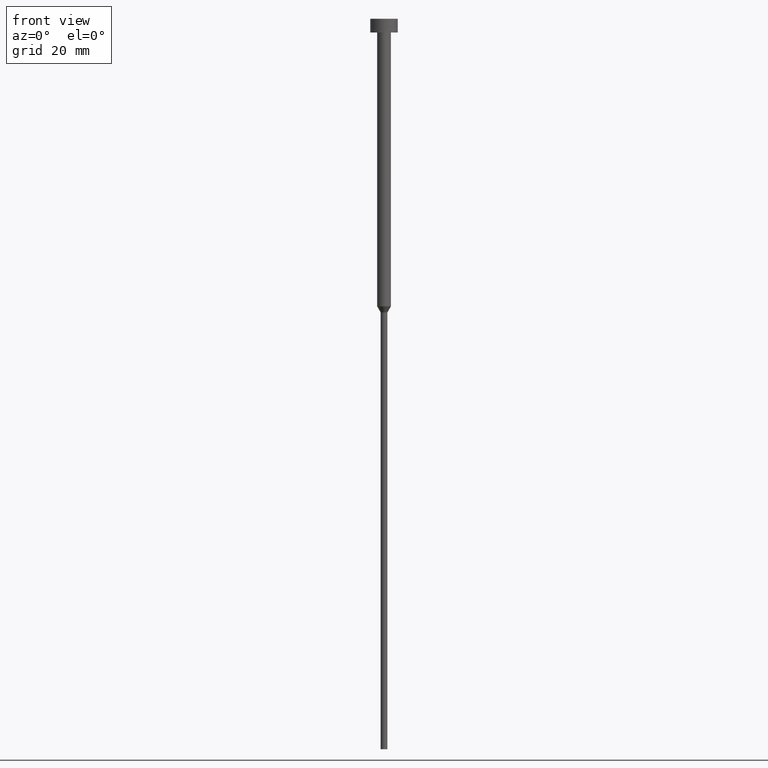
[diagram: clean part render]
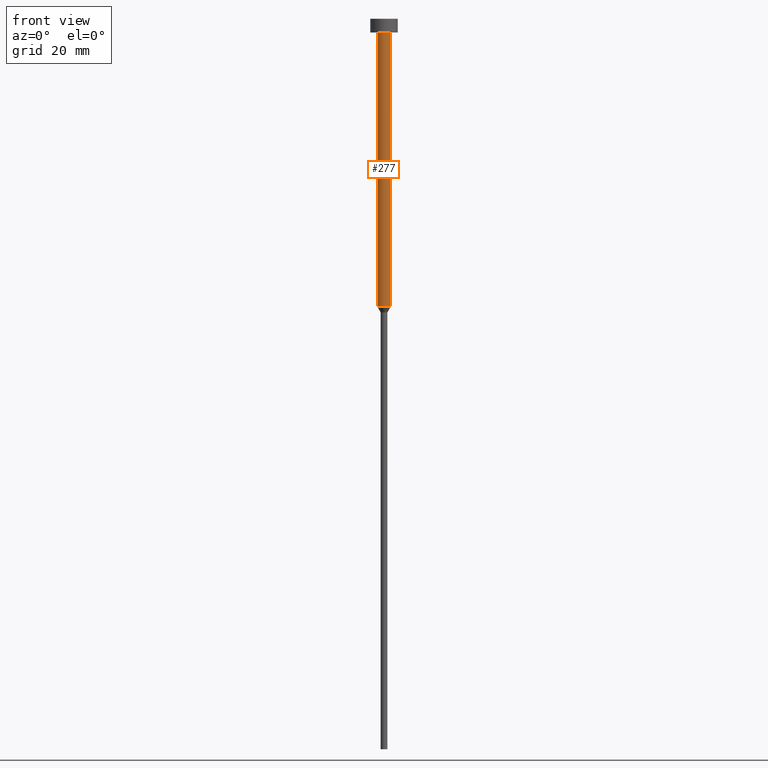
[diagram: same view with one face highlighted and labeled with its STEP entity id]
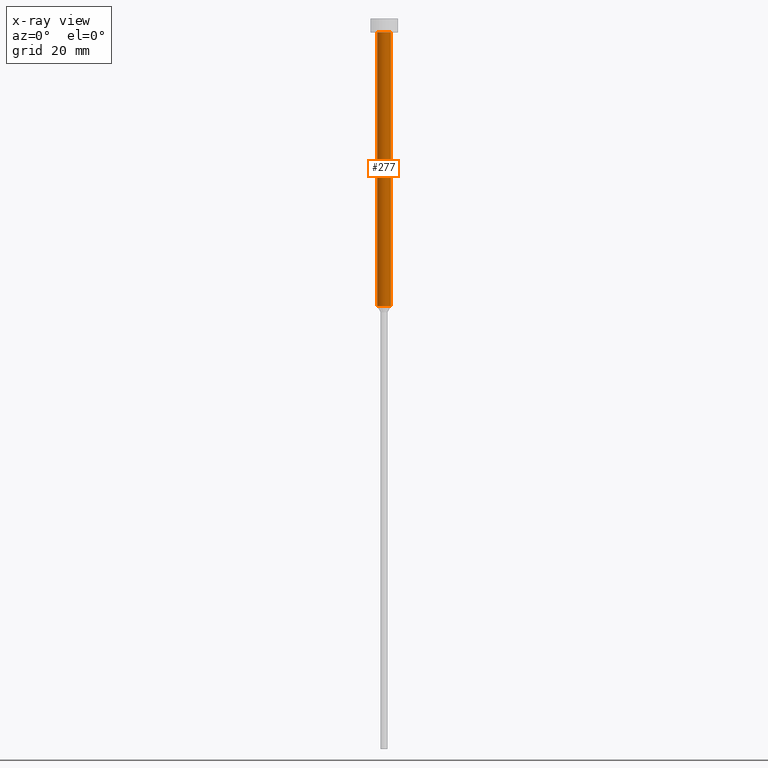
[diagram: x-ray of the same camera — body ghosted, the highlighted face saturated]
A machine part, front view. The second image highlights one B-rep face of the part: STEP entity #277.
The next image is the same camera in x-ray: the body ghosted, the highlighted face saturated — about 0% of this face is hidden behind the body in this view.
In plain terms, the highlighted cylindrical surface (edge-blend (fillet) strip) has radius 1.5 mm, axis along (-0, -0, 1).
Its self-contained STEP definition (entity closure, byte-faithful):
#24 = CYLINDRICAL_SURFACE ( 'NONE', #111, 1.500000000000000000 ) ;
#30 = CARTESIAN_POINT ( 'NONE',  ( 0.000000000000000000, 0.000000000000000000, -3.000000000000000888 ) ) ;
#36 = CARTESIAN_POINT ( 'NONE',  ( 1.500000000000000000, 0.000000000000000000, -3.000000000000000888 ) ) ;
#49 = DIRECTION ( 'NONE',  ( 1.000000000000000000, 0.000000000000000000, 0.000000000000000000 ) ) ;
#51 = DIRECTION ( 'NONE',  ( 1.000000000000000000, 0.000000000000000000, 0.000000000000000000 ) ) ;
#52 = CARTESIAN_POINT ( 'NONE',  ( -1.500000000000000000, 1.836970198721029934E-16, -3.000000000000000888 ) ) ;
#62 = DIRECTION ( 'NONE',  ( -0.000000000000000000, -0.000000000000000000, 1.000000000000000000 ) ) ;
#85 = ORIENTED_EDGE ( 'NONE', *, *, #93, .F. ) ;
#88 = CIRCLE ( 'NONE', #208, 1.500000000000000000 ) ;
#93 = EDGE_CURVE ( 'NONE', #334, #344, #144, .T. ) ;
#94 = VERTEX_POINT ( 'NONE', #201 ) ;
#104 = DIRECTION ( 'NONE',  ( -0.000000000000000000, -0.000000000000000000, 1.000000000000000000 ) ) ;
#105 = LINE ( 'NONE', #346, #233 ) ;
#111 = AXIS2_PLACEMENT_3D ( 'NONE', #197, #299, #51 ) ;
#113 = VERTEX_POINT ( 'NONE', #36 ) ;
#144 = LINE ( 'NONE', #237, #228 ) ;
#157 = ORIENTED_EDGE ( 'NONE', *, *, #178, .T. ) ;
#165 = EDGE_CURVE ( 'NONE', #344, #113, #88, .T. ) ;
#178 = EDGE_CURVE ( 'NONE', #334, #94, #247, .T. ) ;
#197 = CARTESIAN_POINT ( 'NONE',  ( 0.000000000000000000, 0.000000000000000000, 0.000000000000000000 ) ) ;
#201 = CARTESIAN_POINT ( 'NONE',  ( 1.500000000000000000, 0.000000000000000000, -63.00000000000000000 ) ) ;
#208 = AXIS2_PLACEMENT_3D ( 'NONE', #30, #232, #308 ) ;
#216 = AXIS2_PLACEMENT_3D ( 'NONE', #221, #296, #49 ) ;
#220 = EDGE_CURVE ( 'NONE', #94, #113, #105, .T. ) ;
#221 = CARTESIAN_POINT ( 'NONE',  ( 0.000000000000000000, 0.000000000000000000, -63.00000000000000000 ) ) ;
#223 = CARTESIAN_POINT ( 'NONE',  ( -1.500000000000000000, 1.836970198721029934E-16, -63.00000000000000000 ) ) ;
#228 = VECTOR ( 'NONE', #62, 1000.000000000000000 ) ;
#230 = EDGE_LOOP ( 'NONE', ( #85, #157, #318, #243 ) ) ;
#232 = DIRECTION ( 'NONE',  ( -0.000000000000000000, -0.000000000000000000, 1.000000000000000000 ) ) ;
#233 = VECTOR ( 'NONE', #104, 1000.000000000000000 ) ;
#237 = CARTESIAN_POINT ( 'NONE',  ( -1.500000000000000000, 1.836970198721029934E-16, 0.000000000000000000 ) ) ;
#243 = ORIENTED_EDGE ( 'NONE', *, *, #165, .F. ) ;
#247 = CIRCLE ( 'NONE', #216, 1.500000000000000000 ) ;
#277 = ADVANCED_FACE ( 'NONE', ( #324 ), #24, .T. ) ;
#296 = DIRECTION ( 'NONE',  ( -0.000000000000000000, -0.000000000000000000, 1.000000000000000000 ) ) ;
#299 = DIRECTION ( 'NONE',  ( -0.000000000000000000, -0.000000000000000000, 1.000000000000000000 ) ) ;
#308 = DIRECTION ( 'NONE',  ( 1.000000000000000000, 0.000000000000000000, 0.000000000000000000 ) ) ;
#318 = ORIENTED_EDGE ( 'NONE', *, *, #220, .T. ) ;
#324 = FACE_OUTER_BOUND ( 'NONE', #230, .T. ) ;
#334 = VERTEX_POINT ( 'NONE', #223 ) ;
#344 = VERTEX_POINT ( 'NONE', #52 ) ;
#346 = CARTESIAN_POINT ( 'NONE',  ( 1.500000000000000000, 0.000000000000000000, 0.000000000000000000 ) ) ;